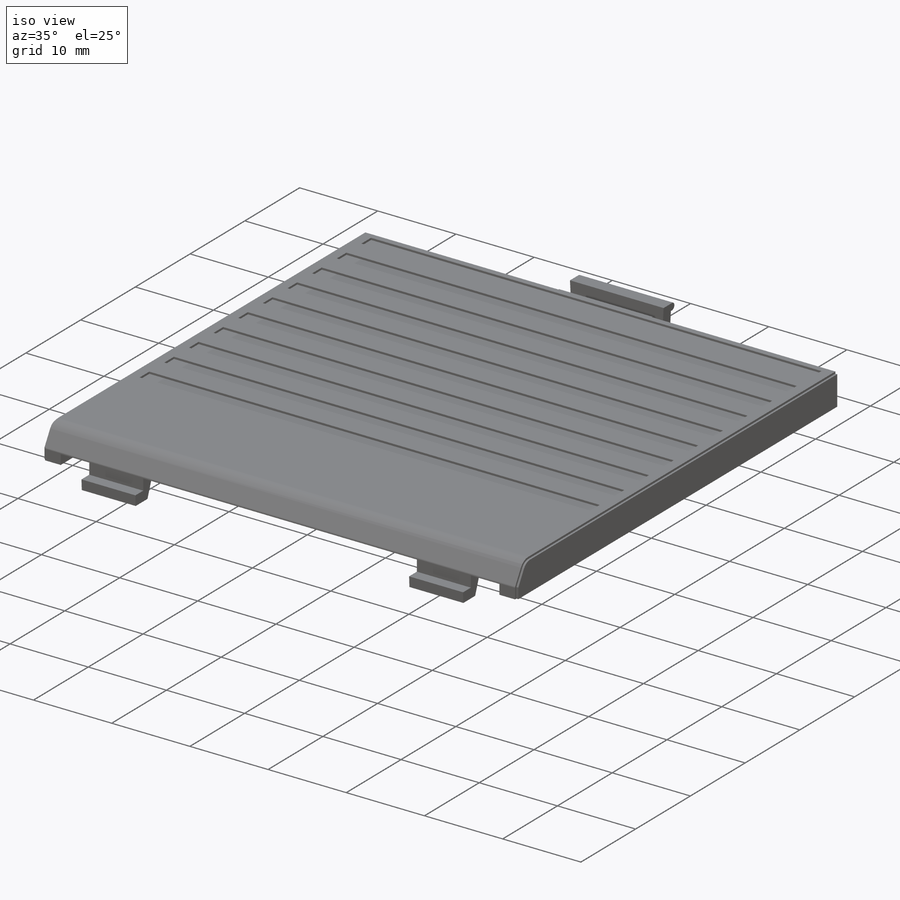
[diagram: iso view]
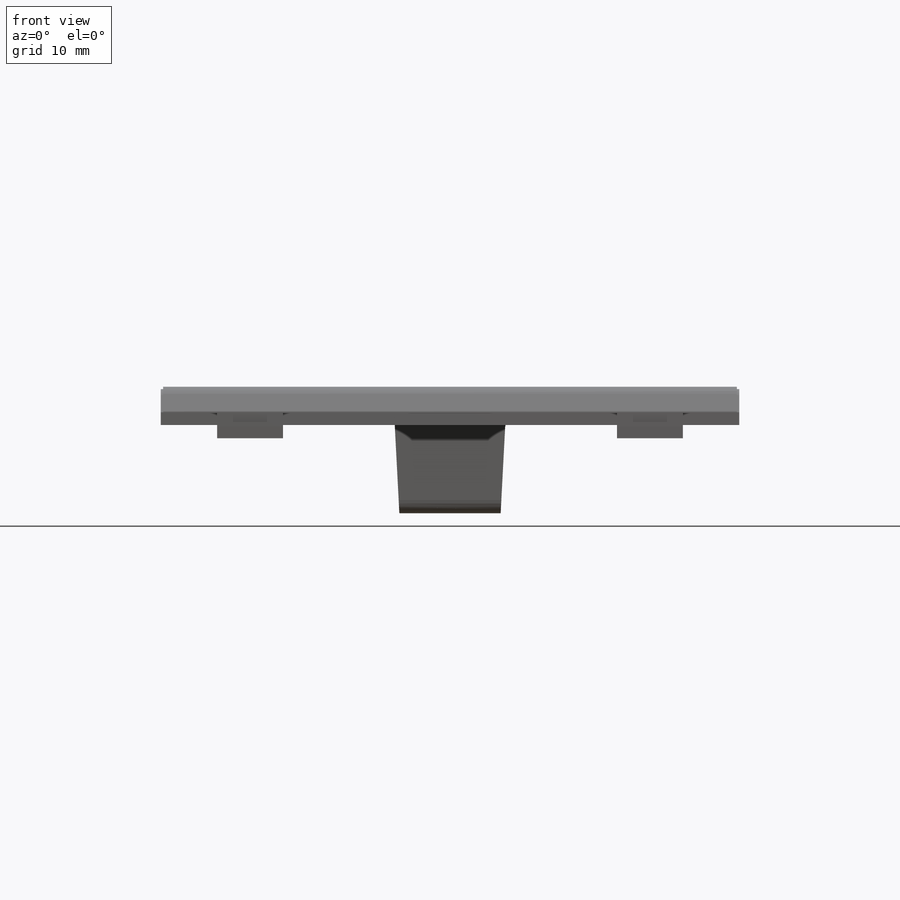
[diagram: front view]
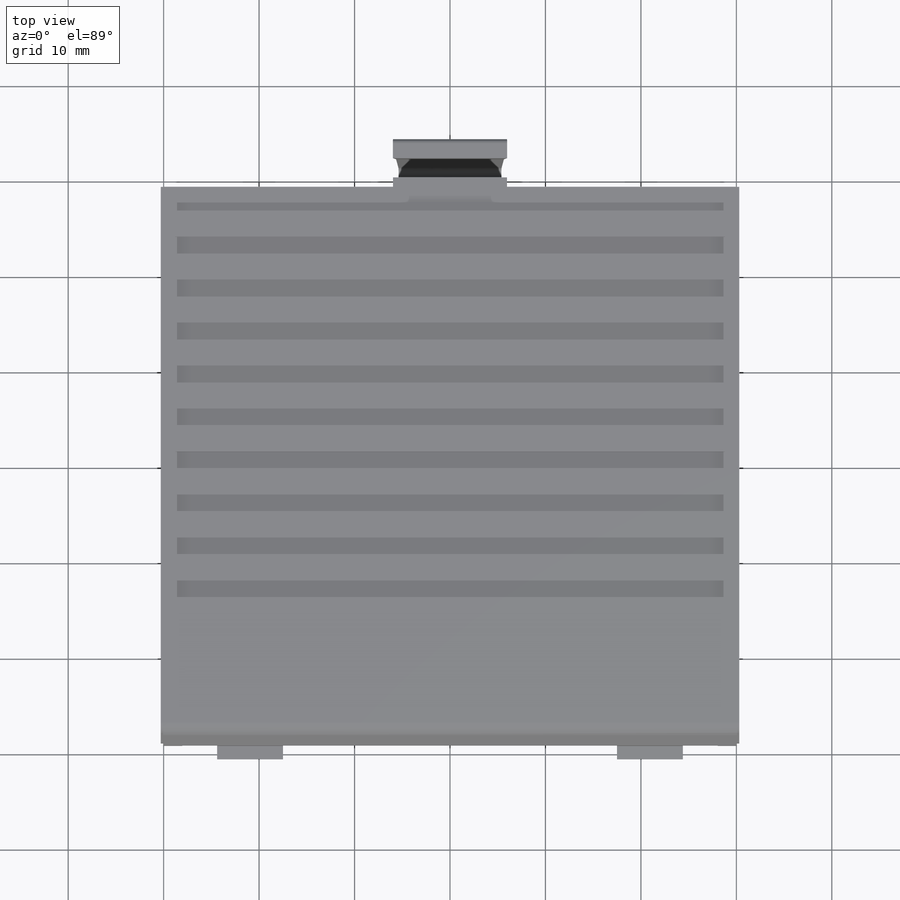
[diagram: top view]
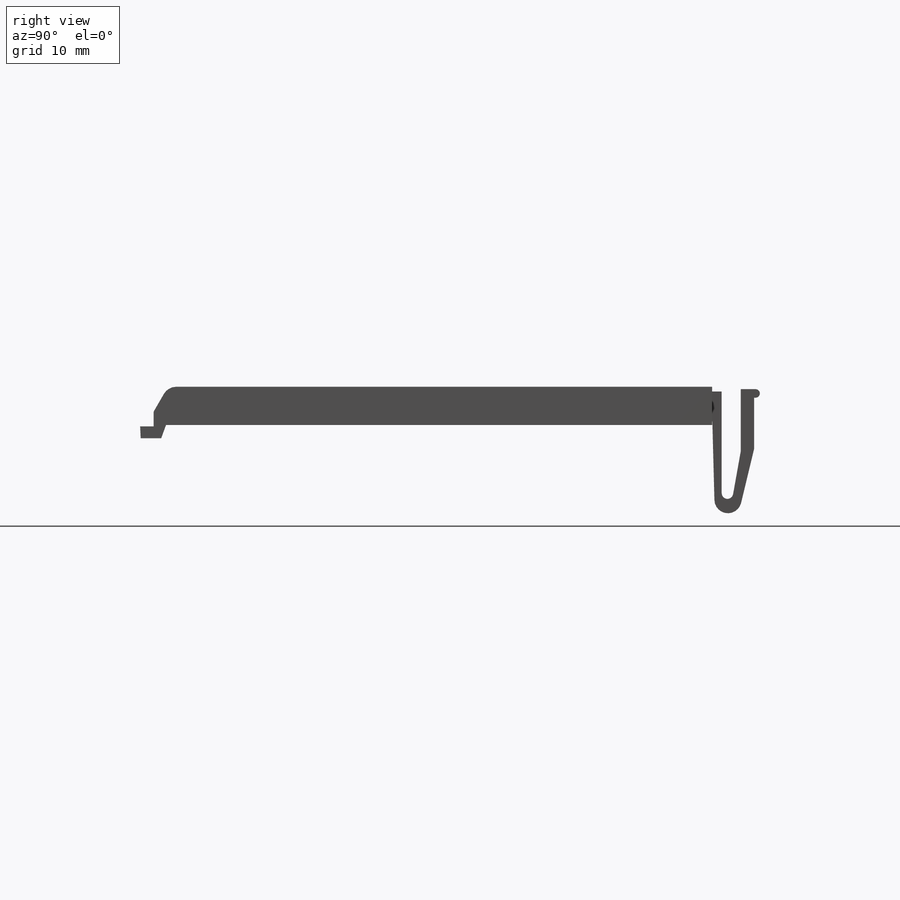
[diagram: right view]
SOLIDWORKS PART (.sldprt)
format: sldprt  version: not decoded by parser v0  size: 429,568 bytes
history: native  units: mm
features: sketch x7, fillet x6, extrude x3, cut_extrude x3, mirror x2, material x1, chamfer x1, sweep x1, plane x1 (+12 scaffold rows collapsed)
feature tree (37):
  scaffold x12  (default folders/planes/origin — collapsed)
  material  "Material <not specified>"
  sketch  "Sketch1"  dims[D1=60.6mm D2=58.5mm]
  extrude  "Boss-Extrude1"  Depth=4mm
  sketch  "Sketch2"  dims[D1=23.5mm D2=2.25mm D3=1.5mm D4=2.0mm]
  cut_extrude  "Cut-Extrude1"  Depth=1.5mm
  sketch  "Sketch3"  dims[D1=1.25mm]
  cut_extrude  "Cut-Extrude2"  [1 undecoded]
  mirror  "Mirror1"
  sketch  "Sketch4"  dims[c1.D1=1.75mm c1.D2=5.4mm c1.D3=2.15mm c1.D4=1.25mm c1.D5=1.25mm c2.D5=92.5deg c2.D6=2.65mm c3.D6=110.0deg]
  extrude  "Boss-Extrude2"  Depth=6.9mm
  sketch  "Sketch5"  dims[c1.D1=1.0mm c1.D2=1.0mm c1.D3=0.5mm c2.D1=10.5mm c2.D4=~12.497157mm c3.D4=1.5deg c3.D5=2.5mm c3.D6=0.9mm c3.D7=2.0mm c3.D8=0.25mm c3.D9=2.0mm c3.D10=1.4mm c3.D11=1.5mm c3.D12=6.25mm c3.D13=6.5mm c3.D14=1.0mm c3.D15=2.5mm c4.D15=90.5deg]
  extrude  "Boss-Extrude3"  Depth=12mm
  fillet  "Fillet1"  [1 undecoded]
  fillet  "Fillet2"  [1 undecoded]
  fillet  "Fillet3"  [1 undecoded]
  fillet  "Fillet4"  Radius=1mm
  sketch  "Sketch6"  dims[D1=1.75mm D2=1.5mm D3=0.75mm D5=2.75mm D4=10.0]
  cut_extrude  "Cut-Extrude3"  Depth=0.25mm
  chamfer  "Chamfer1"  Distance=1.5mm Angle=60deg
  fillet  "Fillet5"  Radius=1.5mm
  sketch  "Sketch8"  dims[D1=0.25mm]
  fillet  "Fillet6"  Radius=0.25mm
  sweep  "Cut-Sweep1"
  mirror  "Mirror2"
  plane  "Plane1"
decode coverage: 16 of 23 modeling features carry decoded parameters
note: ~ marks probable driven/reference dimensions
note: 4 parameter values undecoded
summary: no parameter record found for 4 features
note: suppression state not decoded; provenance and decode notes live in map.json
